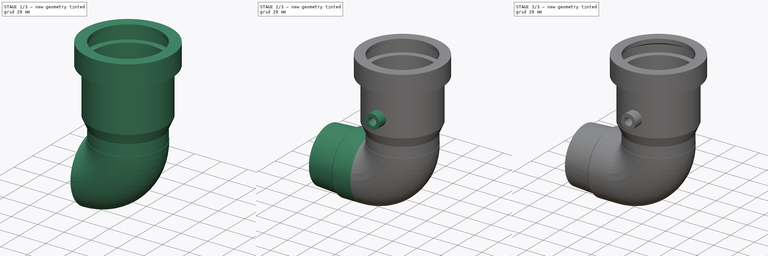
[diagram: build sequence overview — one tinted view per stage of 3, left to right]
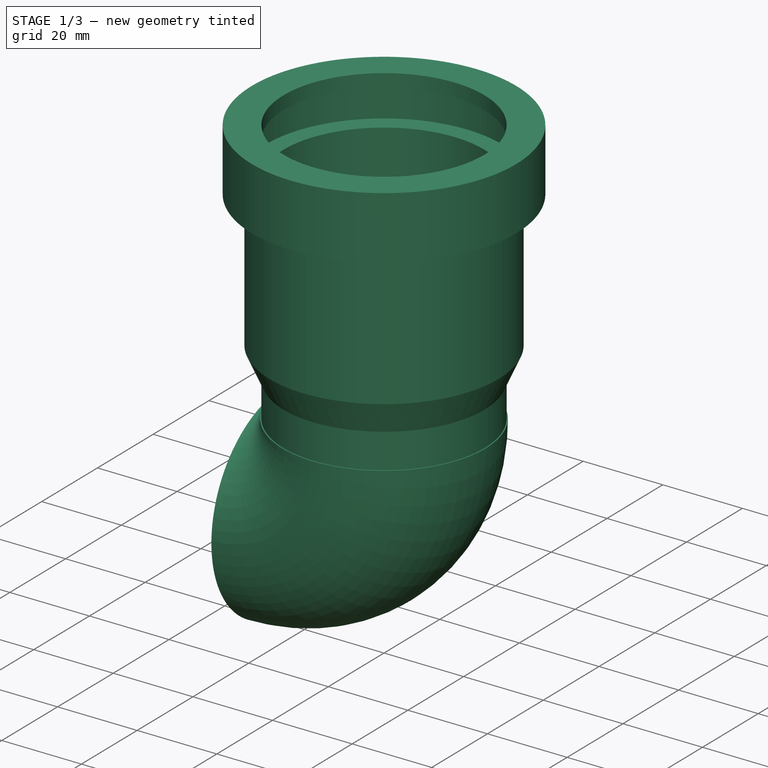
[diagram: stage 1 of 3 — iso view after this stage's code; geometry added in this stage tinted green]
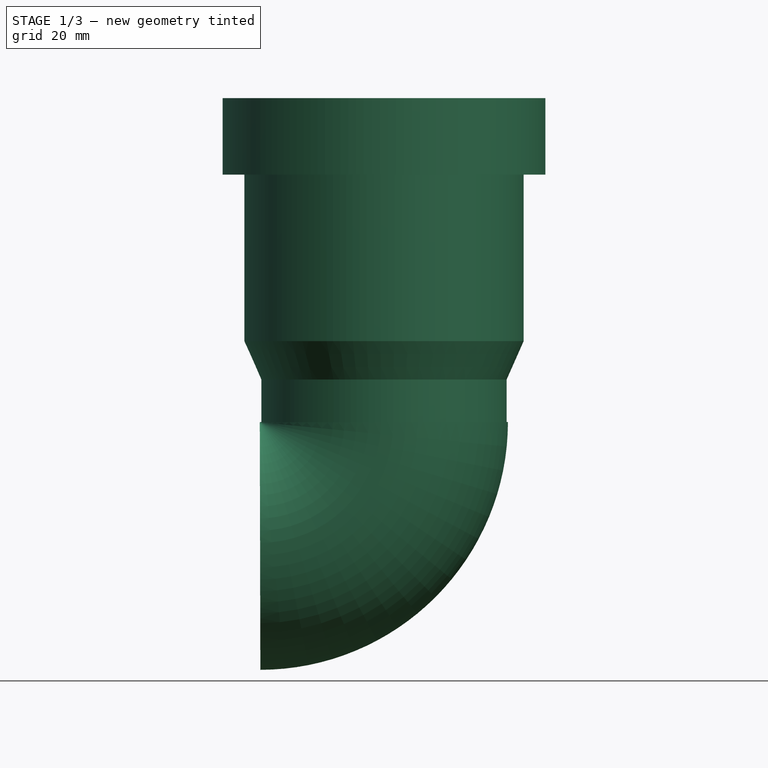
[diagram: stage 1 of 3 — front view after this stage's code; geometry added in this stage tinted green]
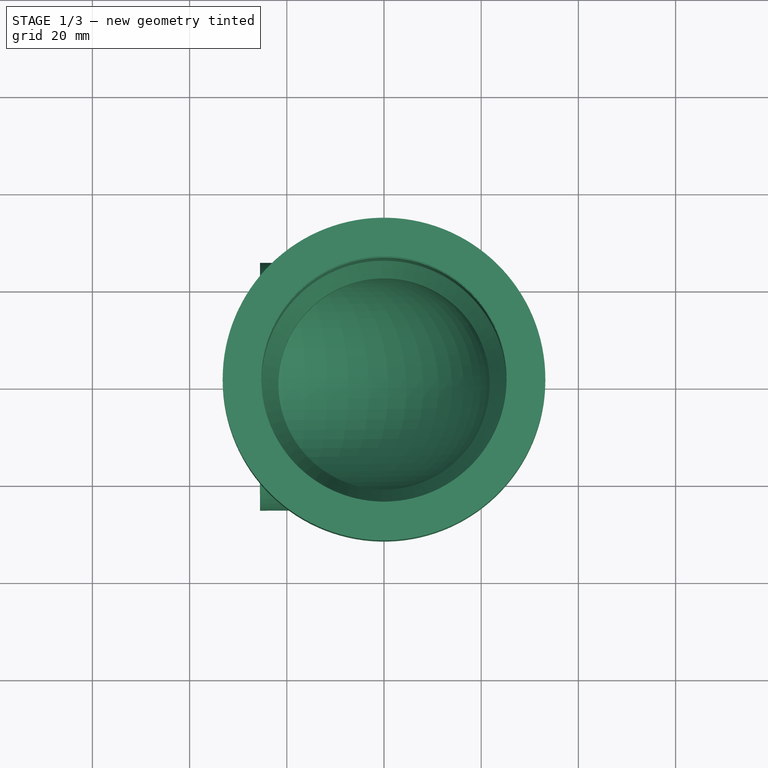
[diagram: stage 1 of 3 — top view after this stage's code; geometry added in this stage tinted green]
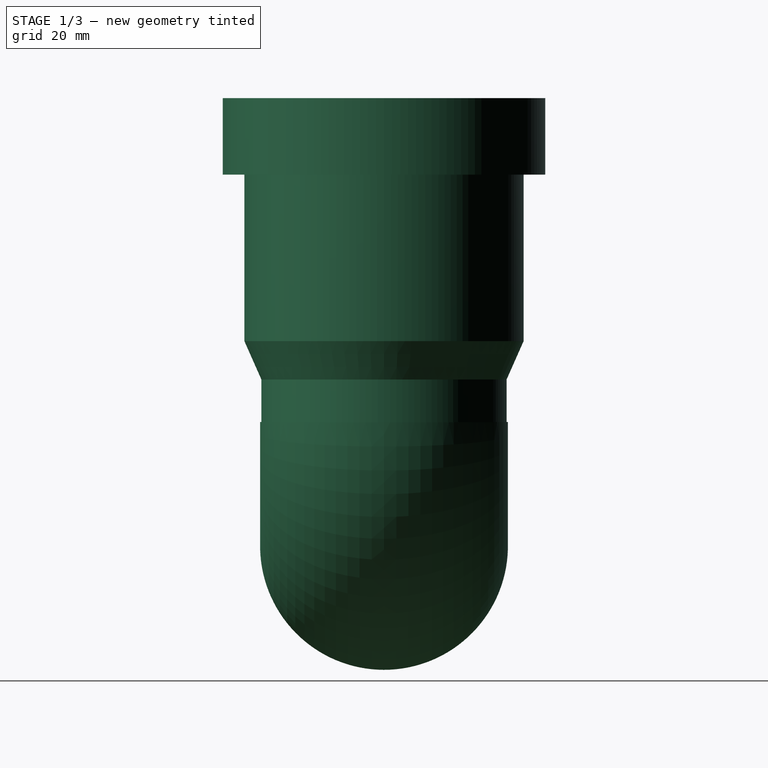
[diagram: stage 1 of 3 — right view after this stage's code; geometry added in this stage tinted green]
FCSTD DOCUMENT  (FreeCAD 1.1R39747 (Git))
Label: Труба для канализухи
License: All rights reserved
LicenseURL: https://en.wikipedia.org/wiki/All_rights_reserved
objects: Sketcher::SketchObject×6, PartDesign::Revolution×2, PartDesign::Chamfer×2, App::Point×1, PartDesign::AdditivePipe×1, PartDesign::Pad×1, PartDesign::Pocket×1, PartDesign::Body×1
note: 34 computed .brp shape members not serialized (recipe doc carries the construction recipe); baked Part::Feature solids carry a one-line shape summary decoded from their .brp

FEATURE [App::Point] Origin001
  Role = Origin
FEATURE [Sketcher::SketchObject] Sketch
  ArcFitTolerance = 1e-06
  AttachmentOffset = pos=(0,25.5,0) rot=(0,0,1;0rad)
  AttachmentSupport = -> [XZ_Plane]
  ExternalTypes = [0]
  FullyConstrained = false
  MakeInternals = false
  MapMode = 5
  Placement = pos=(0,5.7e-15,25.5) rot=(1,0,0;1.5708rad)
  expr: Constraints[14] = (63 - 1.8 * 2) / 2
  sketch-geometry (19):
    g0: LineSegment StartX=28.7303 StartY=16.6299 StartZ=0 EndX=28.7303 EndY=50.9039 EndZ=0
    g1: LineSegment StartX=28.7303 StartY=50.9039 StartZ=0 EndX=33.2 EndY=50.9039 EndZ=0
    g2: LineSegment StartX=25.2303 StartY=54.2669 StartZ=0 EndX=25.2303 EndY=16.6299 EndZ=0
    g3: LineSegment StartX=25.2303 StartY=54.2669 StartZ=0 EndX=29.7 EndY=54.2669 EndZ=0
    g4: LineSegment StartX=29.7 StartY=54.2669 StartZ=0 EndX=29.7 EndY=63.2669 EndZ=0
    g5: LineSegment StartX=29.7 StartY=63.2669 StartZ=0 EndX=25.2303 EndY=63.2669 EndZ=0
    g6: LineSegment StartX=25.2303 StartY=66.6299 StartZ=0 EndX=33.2 EndY=66.6299 EndZ=0
    g7: LineSegment StartX=33.2 StartY=66.6299 StartZ=0 EndX=33.2 EndY=50.9039 EndZ=0
    g8: LineSegment [constr] StartX=25.2303 StartY=66.6299 StartZ=0 EndX=28.7303 EndY=66.6299 EndZ=0
    g9: LineSegment [constr] StartX=28.7303 StartY=66.6299 StartZ=0 EndX=29.7 EndY=63.2669 EndZ=0
    g10: LineSegment [constr] StartX=29.7 StartY=63.2669 StartZ=0 EndX=33.2 EndY=63.2669 EndZ=0
    g11: LineSegment [constr] StartX=28.7303 StartY=50.9039 StartZ=0 EndX=25.2303 EndY=50.9039 EndZ=0
    g12: LineSegment [constr] StartX=29.7 StartY=54.2669 StartZ=0 EndX=28.7303 EndY=50.9039 EndZ=0
    g13: LineSegment StartX=25.2303 StartY=16.6299 StartZ=0 EndX=21.7303 EndY=8.73 EndZ=0
    g14: LineSegment StartX=28.7303 StartY=16.6299 StartZ=0 EndX=25.2303 EndY=8.73 EndZ=0
    g15: LineSegment StartX=21.7303 StartY=8.73 StartZ=0 EndX=21.7303 EndY=0 EndZ=0
    g16: LineSegment StartX=21.7303 StartY=0 StartZ=0 EndX=25.2303 EndY=0 EndZ=0
    g17: LineSegment StartX=25.2303 StartY=0 StartZ=0 EndX=25.2303 EndY=8.73 EndZ=0
    g18: LineSegment StartX=25.2303 StartY=63.2669 StartZ=0 EndX=25.2303 EndY=66.6299 EndZ=0
  constraints (54):
    c: Coincident(g0,g1)
    c: Vertical(g0)
    c: Vertical(g2)
    c: Horizontal(g1)
    c: Coincident(g2,g3)
    c: Coincident(g3,g4)
    c: Vertical(g4)
    c: Coincident(g4,g5)
    c: Horizontal(g6)
    c: Coincident(g6,g7)
    c: Vertical(g7)
    c: Coincident(g7,g1)
    c: Horizontal(g3)
    c: Horizontal(g5)
    c: DistanceX(g-1,g4) = 29.7
    c: DistanceY(g4,g4) = 9  'a'
    c: Vertical(g2,g5)
    c: Horizontal(g8)
    c: Coincident(g8,g9)
    c: Coincident(g9,g4)
    c: Coincident(g9,g10)
    c: PointOnObject(g10,g7)
    c: Horizontal(g10)
    c: Equal(g10,g9)
    c: Equal(g9,g8)
    c: Coincident(g0,g11)
    c: PointOnObject(g11,g2)
    c: Coincident(g3,g12)
    c: Coincident(g12,g0)
    c: Coincident(g2,g13)
    c: Coincident(g0,g14)
    c: Coincident(g13,g15)
    c: Coincident(g15,g16)
    c: Coincident(g16,g17)
    c: Coincident(g17,g14)
    c: Vertical(g15)
    c: Vertical(g17)
    c: Horizontal(g16)
    c: Parallel(g14,g13)
    c: Horizontal(g0,g2)
    c: Horizontal(g14,g13)
    c: Vertical(g14,g2)
    c: Distance(g14,g13) = 3.2
    c: PointOnObject(g16,g-1)
    c: DistanceY(g17,g17) = 8.73  '5'
    c: DistanceX(g10,g10) = 3.5
    c: Equal(g12,g10)
    c: Equal(g11,g12)
    c: Horizontal(g11)
    c: Coincident(g8,g6)
    c: Coincident(g18,g5)
    c: Coincident(g18,g6)
    c: Vertical(g18)
    c: DistanceY(g0,g6) = 50
FEATURE [Sketcher::SketchObject] Sketch001
  ArcFitTolerance = 1e-06
  AttachmentSupport = -> [XZ_Plane]
  ExternalTypes = [0,0]
  FullyConstrained = false
  MakeInternals = false
  MapMode = 5
  Placement = pos=(0,0,0) rot=(1,0,0;1.5708rad)
  sketch-geometry (2):
    g0: ArcOfCircle CenterX=-25.5 CenterY=25.5 CenterZ=0 NormalX=0 NormalY=0 NormalZ=1 AngleXU=0 Radius=25.5 StartAngle=4.71239 EndAngle=6.2809
    g1: LineSegment StartX=-6.6645e-05 StartY=25.4417 StartZ=0 EndX=0 EndY=25.5 EndZ=0
  constraints (6):
    c: PointOnObject(g0,g-1)
    c: Coincident(g1,g0)
    c: Vertical(g0,g0)
    c: Coincident(g-4,g0)
    c: PointOnObject(g1,g-4)
    c: PointOnObject(g1,g-2)
FEATURE [Sketcher::SketchObject] Sketch005
  ArcFitTolerance = 1e-06
  AttachmentOffset = pos=(0,0,27) rot=(0,0,1;0rad)
  AttachmentSupport = -> [XZ_Plane]
  ExternalTypes = [0,0,0]
  FullyConstrained = true
  MakeInternals = false
  MapMode = 5
  Placement = pos=(0,-27,6e-15) rot=(1,0,0;1.5708rad)
  sketch-geometry (2):
    g0: GeomPoint [constr] X=1e-16 Y=42.1299 Z=0
    g1: Circle CenterX=-2.2e-15 CenterY=55.0908 CenterZ=0 NormalX=0 NormalY=0 NormalZ=1 AngleXU=0 Radius=6
  constraints (3):
    c: Symmetric(g-3,g-3,g0)
    c: Diameter(g1) = 12
    c: Symmetric(g-3,g-8,g1)
FEATURE [Sketcher::SketchObject] Sketch006
  ArcFitTolerance = 1e-06
  ExternalTypes = [1]
  FullyConstrained = true
  MakeInternals = false
  MapMode = 5
  Placement = pos=(0,-36,1.23e-14) rot=(1,0,0;1.5708rad)
  sketch-geometry (1):
    g0: Circle CenterX=0 CenterY=55.0908 CenterZ=0 NormalX=0 NormalY=0 NormalZ=1 AngleXU=0 Radius=3.2
  constraints (2):
    c: Coincident(g0,g-3)
    c: Diameter(g0) = 6.4
FEATURE [Sketcher::SketchObject] Sketch007
  ArcFitTolerance = 1e-06
  ExternalTypes = [0,0]
  FullyConstrained = true
  MakeInternals = false
  MapMode = 5
  Placement = pos=(0,5.7e-15,25.5) rot=(1,0,0;3.14159rad)
  sketch-geometry (2):
    g0: Circle CenterX=0 CenterY=0 CenterZ=0 NormalX=0 NormalY=0 NormalZ=1 AngleXU=0 Radius=22
    g1: Circle CenterX=0 CenterY=0 CenterZ=0 NormalX=0 NormalY=0 NormalZ=1 AngleXU=0 Radius=25.5
  constraints (4):
    c: Coincident(g0,g-1)
    c: Coincident(g1,g0)
    c: Equal(g0,g-4)
    c: Equal(g-3,g1)
FEATURE [PartDesign::Revolution] Revolution
  Angle = 360
  Angle2 = 60
  Axis = (0,2e-16,1)
  Base = (0,5.7e-15,25.5)
  Placement = pos=(0,0,0) rot=(1,0,0;1.5708rad)
  Profile = -> Sketch
  ReferenceAxis = -> Sketch [V_Axis]
  Refine = true
  Reversed = true
  Suppressed = false
  Type = 0
FEATURE [PartDesign::AdditivePipe] AdditivePipe
  AuxilleryCurvelinear = true
  AuxillerySpineTangent = false
  BaseFeature = -> Revolution
  Binormal = (0,0,0)
  Mode = 0
  Placement = pos=(0,0,0) rot=(1,0,0;1.5708rad)
  Profile = -> Sketch007
  Refine = true
  Spine = -> Sketch001
  SpineTangent = false
  Suppressed = false
  Transformation = 0
  Transition = 1
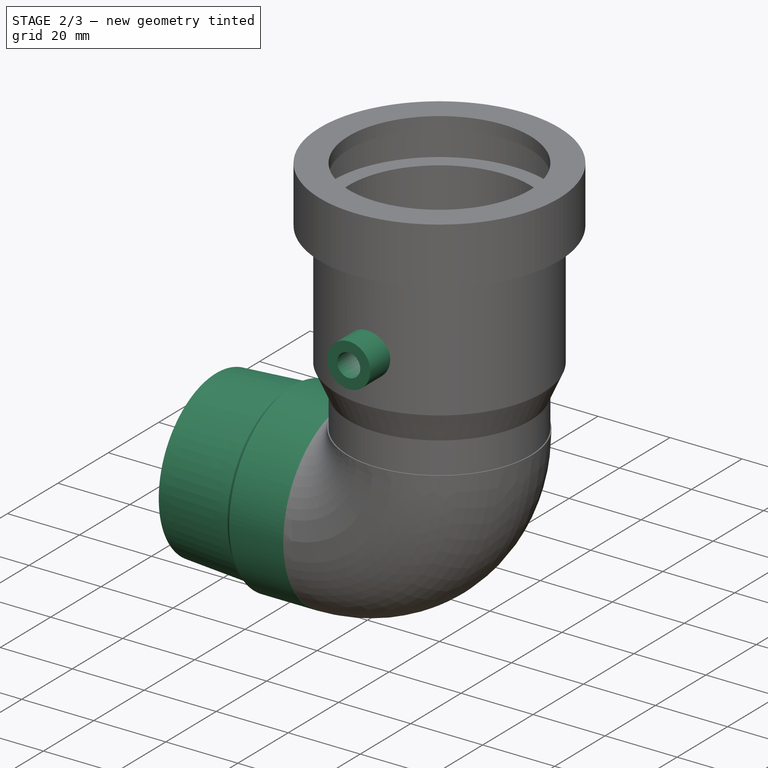
[diagram: stage 2 of 3 — iso view after this stage's code; geometry added in this stage tinted green]
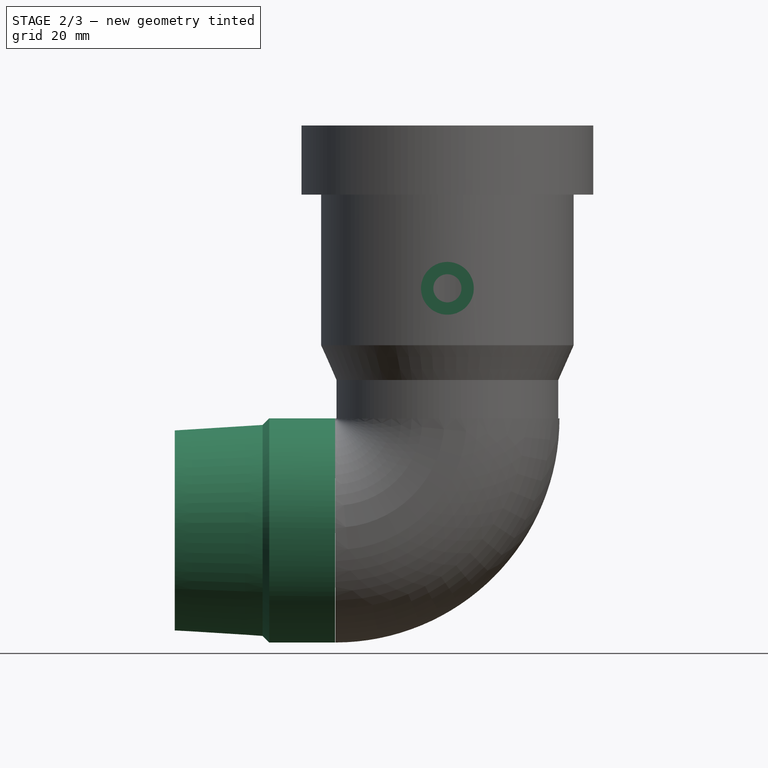
[diagram: stage 2 of 3 — front view after this stage's code; geometry added in this stage tinted green]
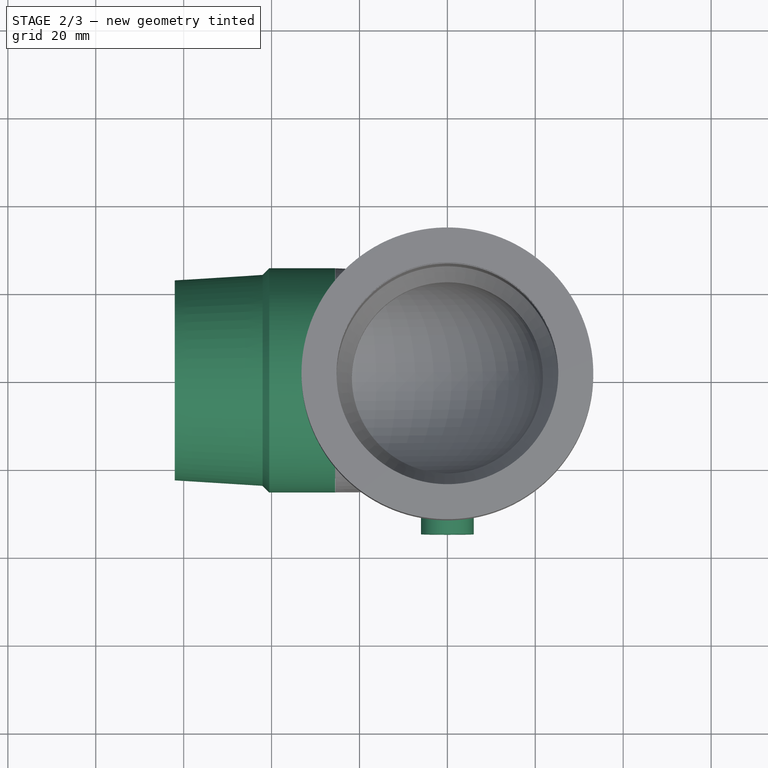
[diagram: stage 2 of 3 — top view after this stage's code; geometry added in this stage tinted green]
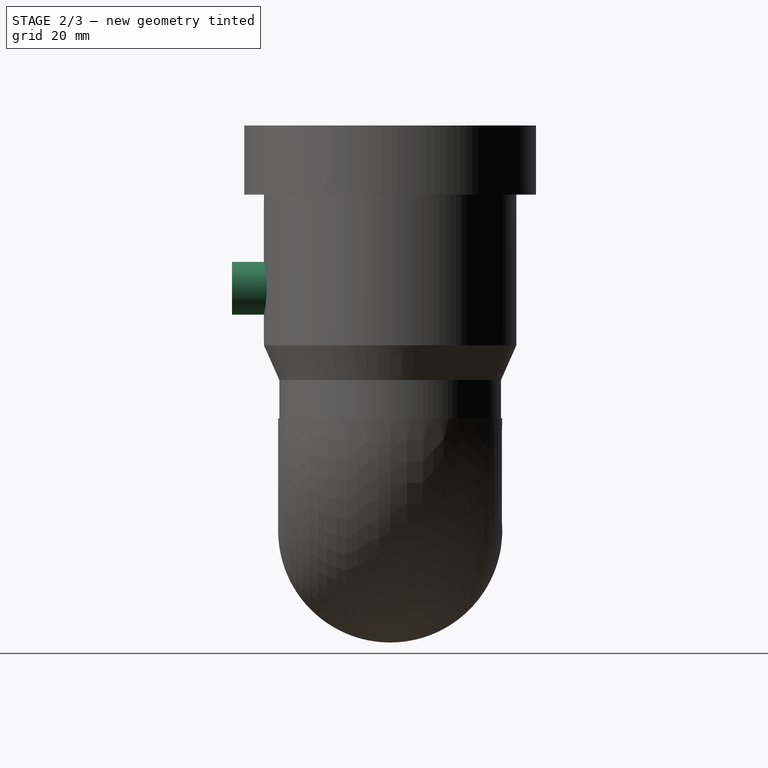
[diagram: stage 2 of 3 — right view after this stage's code; geometry added in this stage tinted green]
FEATURE [Sketcher::SketchObject] Sketch004
  ArcFitTolerance = 1e-06
  AttachmentSupport = -> [XZ_Plane]
  ExternalGeometry = -> [AdditivePipe]
  ExternalTypes = [0,0,0,0,0]
  FullyConstrained = false
  MakeInternals = false
  MapMode = 5
  Placement = pos=(0,0,0) rot=(1,0,0;1.5708rad)
  sketch-geometry (7):
    g0: LineSegment StartX=-25.5423 StartY=25.4999 StartZ=0 EndX=-25.5423 EndY=20.75 EndZ=0
    g1: LineSegment StartX=-25.5423 StartY=20.75 StartZ=0 EndX=-62.0423 EndY=20.75 EndZ=0
    g2: LineSegment StartX=-62.0423 StartY=20.75 StartZ=0 EndX=-62.0423 EndY=22.75 EndZ=0
    g3: LineSegment StartX=-62.0423 StartY=22.75 StartZ=0 EndX=-42.0423 EndY=24 EndZ=0
    g4: LineSegment StartX=-42.0423 StartY=24 StartZ=0 EndX=-40.5423 EndY=25.4999 EndZ=0
    g5: LineSegment StartX=-40.5423 StartY=25.4999 StartZ=0 EndX=-25.5423 EndY=25.4999 EndZ=0
    g6: LineSegment [constr] StartX=-62.0423 StartY=22.75 StartZ=0 EndX=-17.3908 EndY=22.75 EndZ=0
  constraints (19):
    c: Vertical(g0)
    c: Coincident(g0,g1)
    c: Horizontal(g1)
    c: Coincident(g1,g2)
    c: Coincident(g2,g3)
    c: Coincident(g3,g4)
    c: Coincident(g4,g5)
    c: Horizontal(g5)
    c: Vertical(g2)
    c: Coincident(g6,g2)
    c: Angle(g6,g4) = 0.785398
    c: DistanceY(g-1,g2) = 22.75
    c: Distance(g2,g2) = 2
    c: DistanceY(g-1,g3) = 24
    c: DistanceX(g5,g5) = 15
    c: DistanceX(g3,g3) = 20
    c: Horizontal(g6)
    c: Coincident(g0,g5)
    c: PointOnObject(g-5,g5)
FEATURE [PartDesign::Revolution] Revolution001
  Angle = 360
  Angle2 = 60
  Axis = (1,-1e-16,1e-16)
  Base = (0,0,0)
  BaseFeature = -> AdditivePipe
  Placement = pos=(0,0,0) rot=(1,0,0;1.5708rad)
  Profile = -> Sketch004
  ReferenceAxis = -> X_Axis
  Refine = true
  Suppressed = false
  Type = 0
FEATURE [PartDesign::Pad] Pad
  BaseFeature = -> Revolution001
  Direction = (0,-1,2e-16)
  Length = 9
  Length2 = 10
  Placement = pos=(0,0,0) rot=(1,0,0;1.5708rad)
  Profile = -> Sketch005
  ReferenceAxis = -> Sketch005 [N_Axis]
  Refine = true
  Suppressed = false
  Type = 0
FEATURE [PartDesign::Pocket] Pocket
  BaseFeature = -> Pad
  Direction = (0,1,-2e-16)
  Length = 5
  Length2 = 5
  Placement = pos=(0,0,0) rot=(1,0,0;1.5708rad)
  Profile = -> Sketch006
  ReferenceAxis = -> Sketch006 [N_Axis]
  Refine = true
  Suppressed = false
  Type = 2
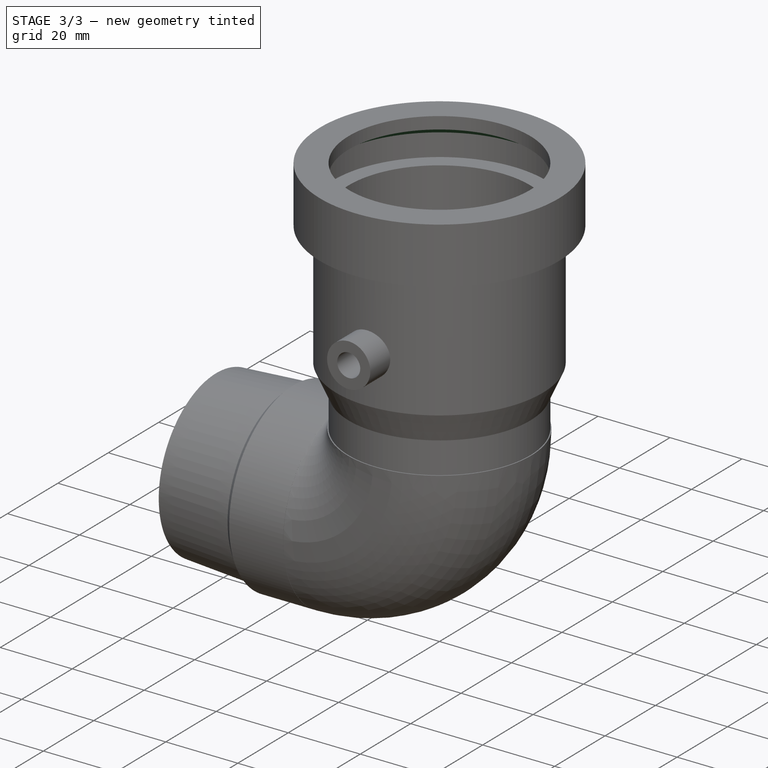
[diagram: stage 3 of 3 — iso view after this stage's code; geometry added in this stage tinted green]
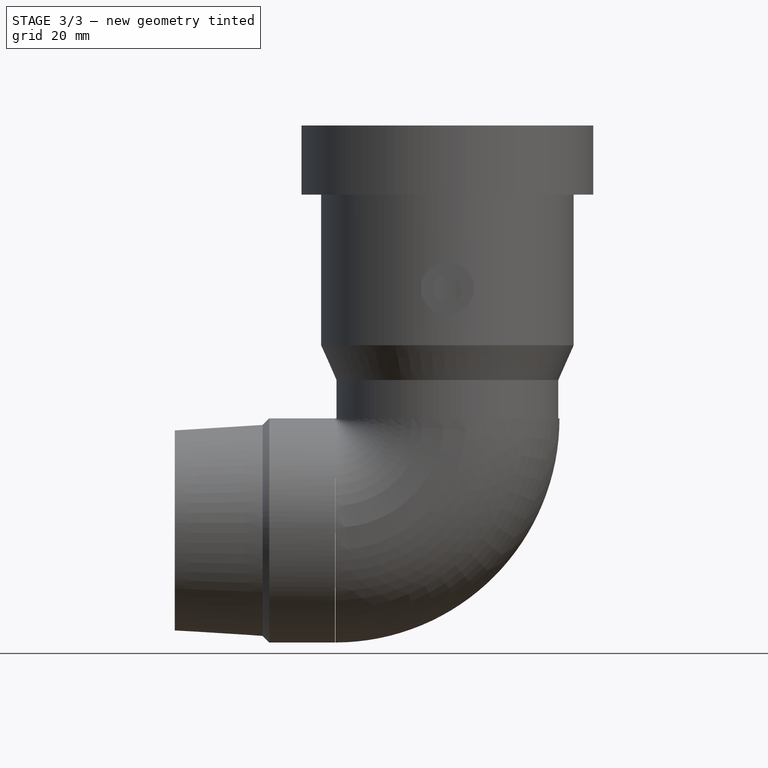
[diagram: stage 3 of 3 — front view after this stage's code; geometry added in this stage tinted green]
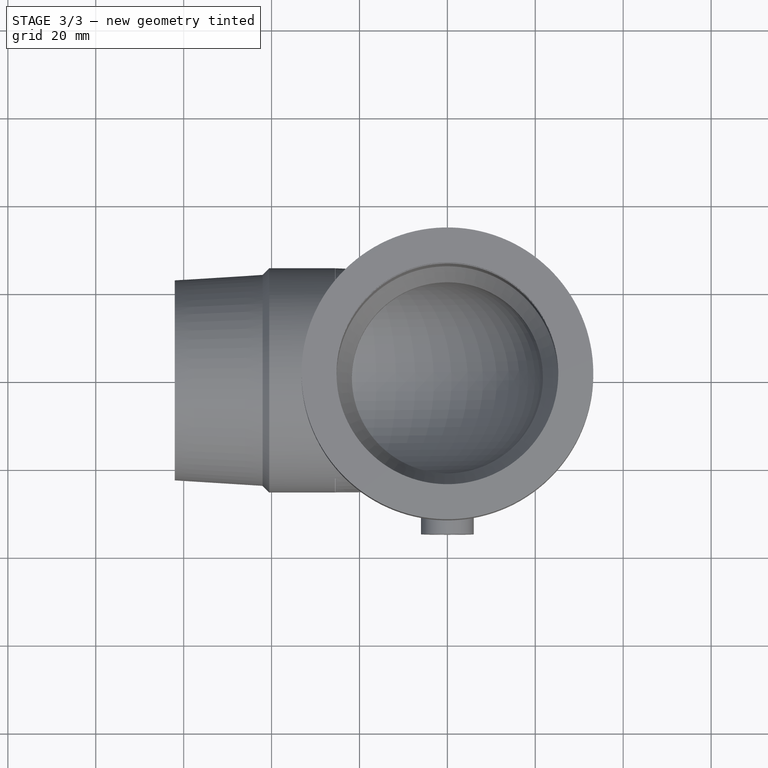
[diagram: stage 3 of 3 — top view after this stage's code; geometry added in this stage tinted green]
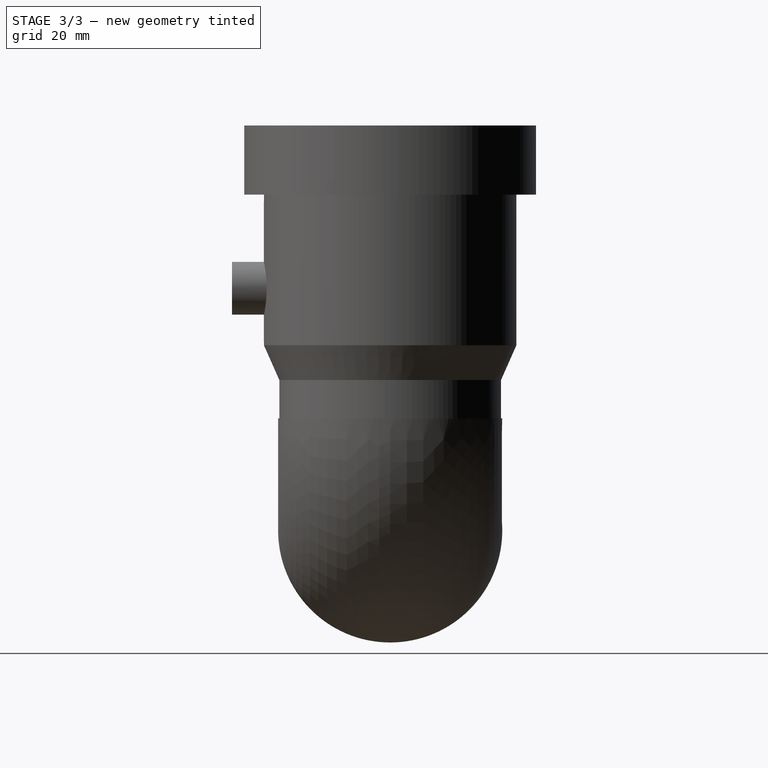
[diagram: stage 3 of 3 — right view after this stage's code; geometry added in this stage tinted green]
FEATURE [PartDesign::Chamfer] Chamfer
  Angle = 45
  Base = -> Pocket [Edge52,Edge53]
  BaseFeature = -> Pocket
  ChamferType = 0
  FlipDirection = false
  Placement = pos=(0,0,0) rot=(1,0,0;1.5708rad)
  Refine = true
  Size = 2.8
  Size2 = 1
  SupportTransform = false
  Suppressed = false
  UseAllEdges = false
FEATURE [PartDesign::Chamfer] Chamfer001
  Angle = 45
  Base = -> Pocket [Edge26]
  BaseFeature = -> Pocket
  ChamferType = 0
  FlipDirection = false
  Placement = pos=(0,0,0) rot=(1,0,0;1.5708rad)
  Refine = true
  Size = 0.5
  Size2 = 1
  SupportTransform = false
  Suppressed = false
  UseAllEdges = false
FEATURE [PartDesign::Body] Body  label="Тело"
  AllowCompound = false
  Group = -> [Sketch,Sketch001,Sketch004,Sketch005,Sketch006,Sketch007,Revolution,AdditivePipe,Revolution001,Pad,Pocket,Chamfer,Chamfer001]
  Origin = -> Origin
  Tip = -> Chamfer001
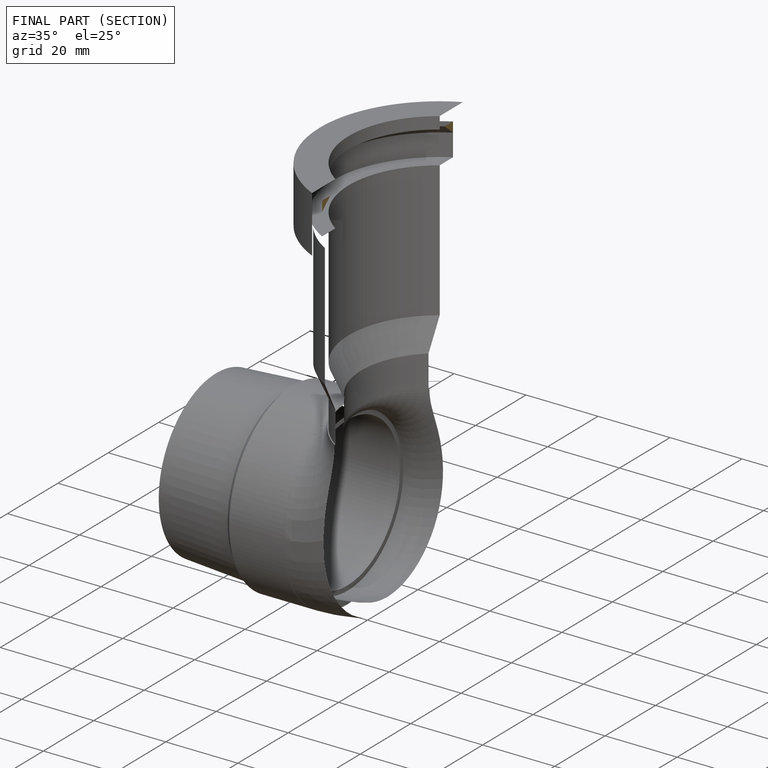
[diagram: finished part — half-section view (interior)]
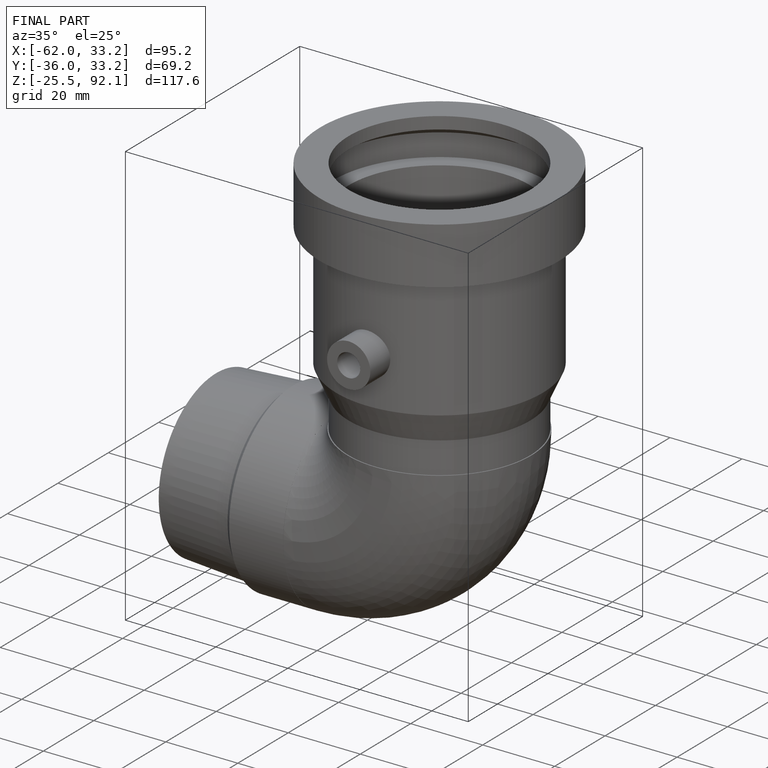
[diagram: finished part — iso view with bounding-box wireframe]
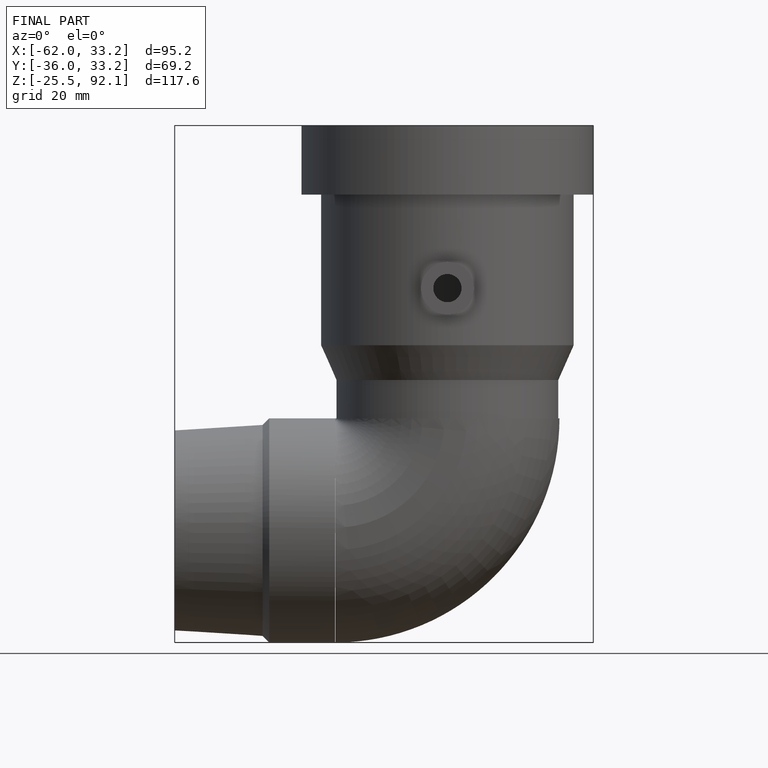
[diagram: finished part — front view with bounding-box wireframe]
